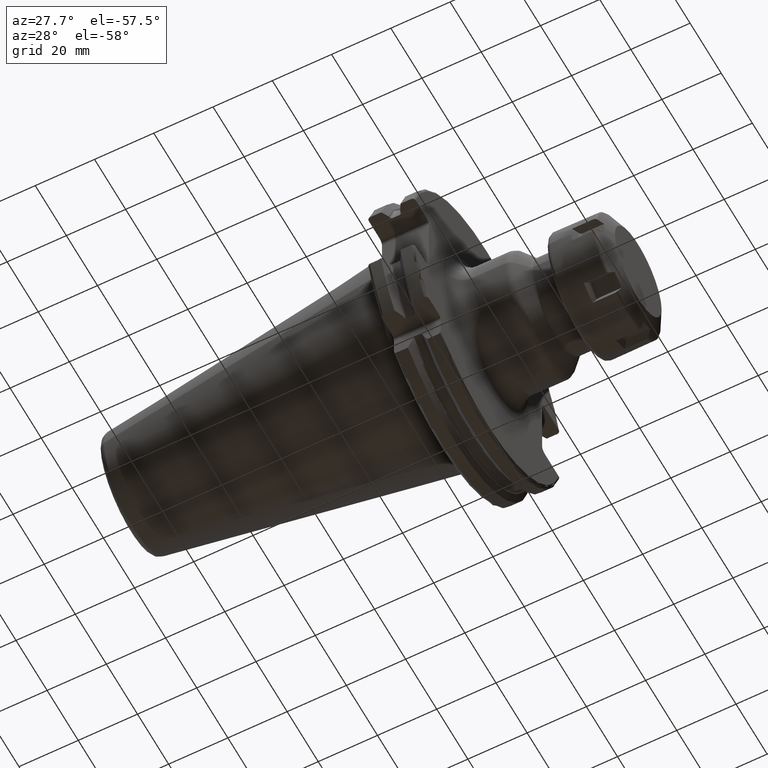
[diagram: clean part render]
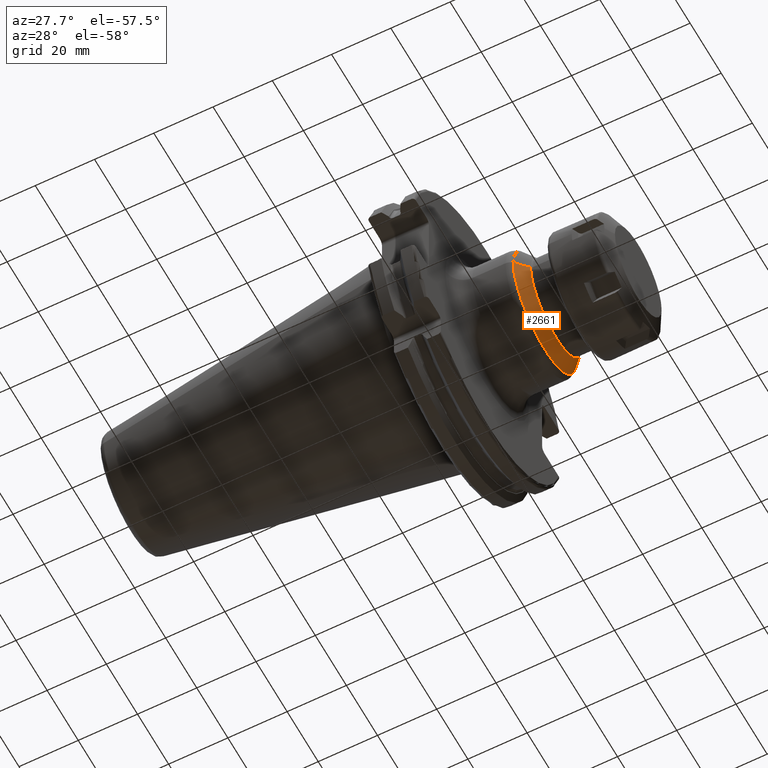
[diagram: same view with one face highlighted and labeled with its STEP entity id]
A machine part, auxiliary view. The second image highlights one B-rep face of the part: STEP entity #2661.
In plain terms, the highlighted conical surface has half-angle 45 deg.
Its self-contained STEP definition (entity closure, byte-faithful):
#1000=CARTESIAN_POINT('',(3.837867965644E1,0.E0,0.E0));
#1001=DIRECTION('',(-1.E0,0.E0,0.E0));
#1002=DIRECTION('',(0.E0,1.E0,0.E0));
#1003=AXIS2_PLACEMENT_3D('',#1000,#1001,#1002);
#1005=DIRECTION('',(-7.071067811865E-1,-7.071067811865E-1,-2.694368523437E-12));
#1006=VECTOR('',#1005,5.414213562372E0);
#1007=CARTESIAN_POINT('',(4.220710678119E1,-1.629289321881E1,
2.356887934587E-13));
#1008=LINE('',#1007,#1006);
#1009=CARTESIAN_POINT('',(4.220710678119E1,0.E0,0.E0));
#1010=DIRECTION('',(1.E0,0.E0,0.E0));
#1011=DIRECTION('',(0.E0,-1.E0,0.E0));
#1012=AXIS2_PLACEMENT_3D('',#1009,#1010,#1011);
#1014=DIRECTION('',(-7.071067811865E-1,7.071067811865E-1,2.694753983106E-12));
#1015=VECTOR('',#1014,5.414213562372E0);
#1016=CARTESIAN_POINT('',(4.220710678119E1,1.629289321881E1,
-2.379431596046E-13));
#1017=LINE('',#1016,#1015);
#1555=CARTESIAN_POINT('',(4.220710678119E1,-1.629289321881E1,0.E0));
#1556=CARTESIAN_POINT('',(4.220710678119E1,1.629289321881E1,0.E0));
#1557=VERTEX_POINT('',#1555);
#1558=VERTEX_POINT('',#1556);
#1567=CARTESIAN_POINT('',(3.837867965644E1,2.012132034356E1,0.E0));
#1568=CARTESIAN_POINT('',(3.837867965644E1,-2.012132034356E1,0.E0));
#1569=VERTEX_POINT('',#1567);
#1570=VERTEX_POINT('',#1568);
#2647=CARTESIAN_POINT('',(4.029289321881E1,0.E0,0.E0));
#2648=DIRECTION('',(-1.E0,0.E0,0.E0));
#2649=DIRECTION('',(0.E0,1.E0,0.E0));
#2650=AXIS2_PLACEMENT_3D('',#2647,#2648,#2649);
#2651=CONICAL_SURFACE('',#2650,1.820710678119E1,4.5E1);
#2652=ORIENTED_EDGE('',*,*,#2629,.T.);
#2654=ORIENTED_EDGE('',*,*,#2653,.F.);
#2656=ORIENTED_EDGE('',*,*,#2655,.T.);
#2658=ORIENTED_EDGE('',*,*,#2657,.T.);
#2659=EDGE_LOOP('',(#2652,#2654,#2656,#2658));
#2660=FACE_OUTER_BOUND('',#2659,.F.);
#2661=ADVANCED_FACE('',(#2660),#2651,.T.);
#1004=CIRCLE('',#1003,2.012132034356E1);
#1013=CIRCLE('',#1012,1.629289321881E1);
#2629=EDGE_CURVE('',#1569,#1570,#1004,.T.);
#2653=EDGE_CURVE('',#1557,#1570,#1008,.T.);
#2655=EDGE_CURVE('',#1557,#1558,#1013,.T.);
#2657=EDGE_CURVE('',#1558,#1569,#1017,.T.);